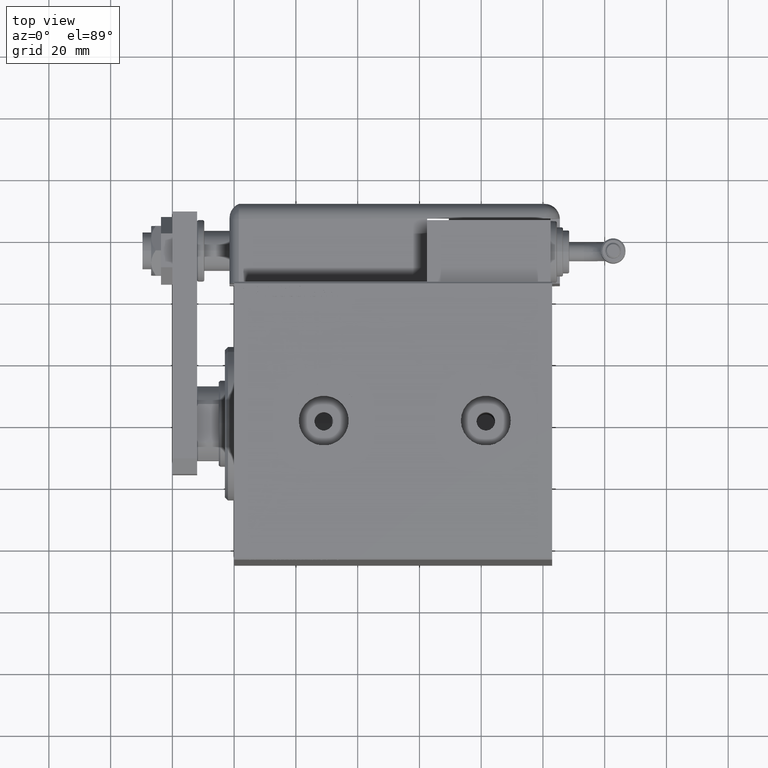
[diagram: clean part render]
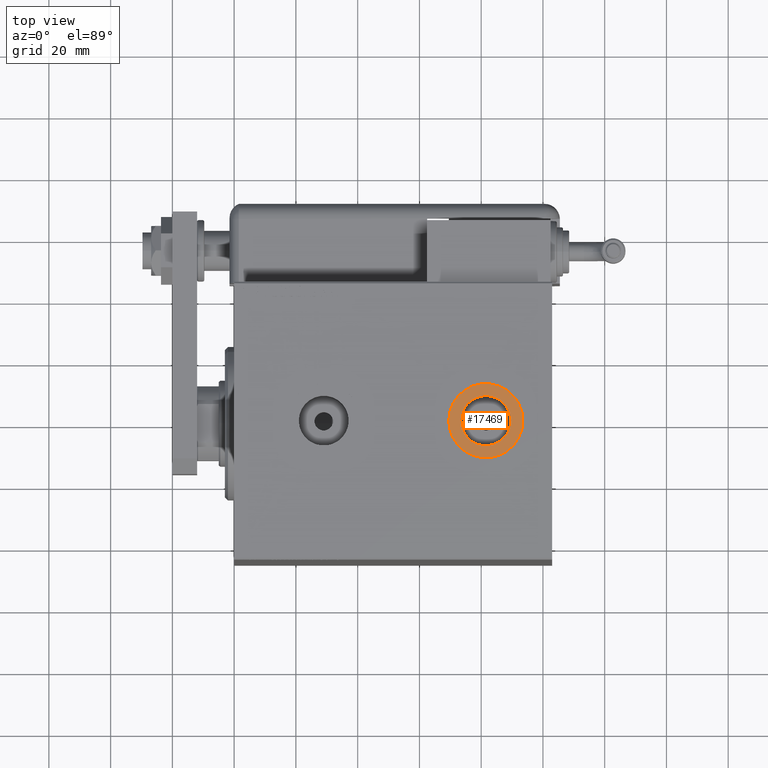
[diagram: same view with one face highlighted and labeled with its STEP entity id]
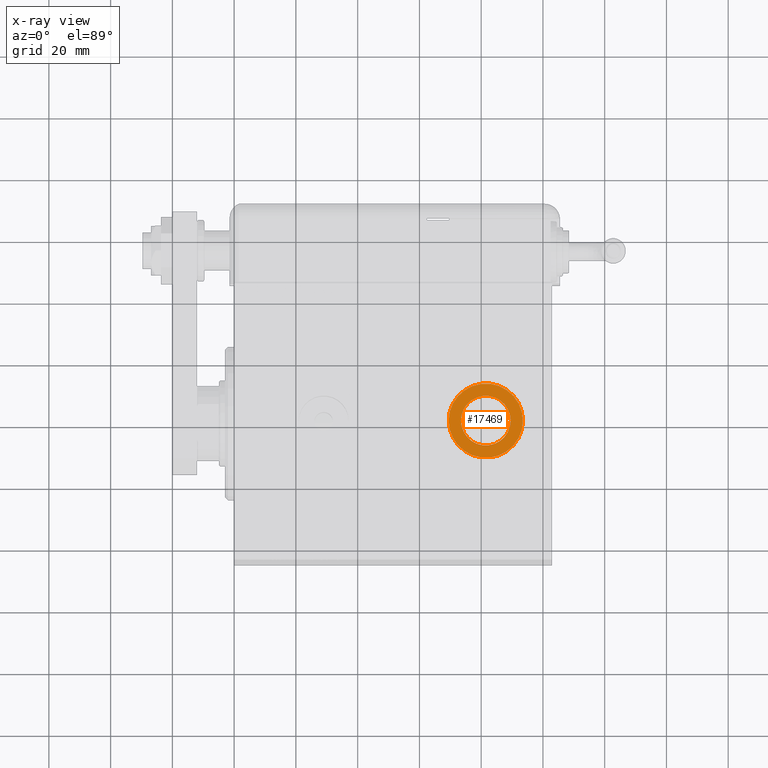
[diagram: x-ray of the same camera — body ghosted, the highlighted face saturated]
A machine part, top view. The second image highlights one B-rep face of the part: STEP entity #17469.
The next image is the same camera in x-ray: the body ghosted, the highlighted face saturated — about 0% of this face is hidden behind the body in this view.
In plain terms, the highlighted planar face has unit normal (0, 0, 1).
Its self-contained STEP definition (entity closure, byte-faithful):
#2341 = DIRECTION ( 'NONE',  ( 0.000000000000000000, 0.000000000000000000, 1.000000000000000000 ) ) ;
#3025 = CARTESIAN_POINT ( 'NONE',  ( 81.49999999999998579, -8.866364432770349300E-15, 57.39999999999999858 ) ) ;
#3370 = DIRECTION ( 'NONE',  ( 1.000000000000000000, 0.000000000000000000, 0.000000000000000000 ) ) ;
#5246 = ORIENTED_EDGE ( 'NONE', *, *, #60357, .F. ) ;
#7692 = CARTESIAN_POINT ( 'NONE',  ( 89.58499999999997954, -8.866364432770349300E-15, 57.39999999999999858 ) ) ;
#9224 = ORIENTED_EDGE ( 'NONE', *, *, #42184, .F. ) ;
#12326 = FACE_OUTER_BOUND ( 'NONE', #42137, .T. ) ;
#15769 = VERTEX_POINT ( 'NONE', #59922 ) ;
#15954 = AXIS2_PLACEMENT_3D ( 'NONE', #24788, #34092, #24484 ) ;
#17469 = ADVANCED_FACE ( 'NONE', ( #40552, #12326 ), #31231, .T. ) ;
#18318 = VERTEX_POINT ( 'NONE', #52190 ) ;
#21925 = DIRECTION ( 'NONE',  ( 1.000000000000000000, 0.000000000000000000, -0.000000000000000000 ) ) ;
#24484 = DIRECTION ( 'NONE',  ( 1.000000000000000000, 0.000000000000000000, 0.000000000000000000 ) ) ;
#24788 = CARTESIAN_POINT ( 'NONE',  ( 81.49999999999998579, -8.866364432770349300E-15, 57.39999999999999858 ) ) ;
#26968 = DIRECTION ( 'NONE',  ( 0.000000000000000000, 0.000000000000000000, 1.000000000000000000 ) ) ;
#28417 = AXIS2_PLACEMENT_3D ( 'NONE', #59105, #2341, #60321 ) ;
#29602 = VERTEX_POINT ( 'NONE', #7692 ) ;
#29916 = AXIS2_PLACEMENT_3D ( 'NONE', #3025, #31535, #21925 ) ;
#31199 = AXIS2_PLACEMENT_3D ( 'NONE', #51488, #26968, #37210 ) ;
#31231 = PLANE ( 'NONE',  #29916 ) ;
#31535 = DIRECTION ( 'NONE',  ( 0.000000000000000000, 0.000000000000000000, 1.000000000000000000 ) ) ;
#31574 = DIRECTION ( 'NONE',  ( 0.000000000000000000, 0.000000000000000000, 1.000000000000000000 ) ) ;
#33142 = EDGE_CURVE ( 'NONE', #18318, #37615, #43225, .T. ) ;
#34092 = DIRECTION ( 'NONE',  ( 0.000000000000000000, 0.000000000000000000, 1.000000000000000000 ) ) ;
#35603 = CARTESIAN_POINT ( 'NONE',  ( 69.49999999999997158, -7.396788273793525944E-15, 57.39999999999999858 ) ) ;
#37210 = DIRECTION ( 'NONE',  ( 1.000000000000000000, 0.000000000000000000, 0.000000000000000000 ) ) ;
#37615 = VERTEX_POINT ( 'NONE', #35603 ) ;
#37620 = EDGE_LOOP ( 'NONE', ( #5246, #9224 ) ) ;
#40317 = CIRCLE ( 'NONE', #28417, 12.00000000000001066 ) ;
#40552 = FACE_BOUND ( 'NONE', #37620, .T. ) ;
#42137 = EDGE_LOOP ( 'NONE', ( #43175, #47430 ) ) ;
#42184 = EDGE_CURVE ( 'NONE', #15769, #29602, #57964, .T. ) ;
#43175 = ORIENTED_EDGE ( 'NONE', *, *, #33142, .T. ) ;
#43225 = CIRCLE ( 'NONE', #48193, 12.00000000000001066 ) ;
#46538 = EDGE_CURVE ( 'NONE', #37615, #18318, #40317, .T. ) ;
#47430 = ORIENTED_EDGE ( 'NONE', *, *, #46538, .T. ) ;
#48193 = AXIS2_PLACEMENT_3D ( 'NONE', #51445, #31574, #3370 ) ;
#51445 = CARTESIAN_POINT ( 'NONE',  ( 81.49999999999998579, -8.866364432770349300E-15, 57.39999999999999858 ) ) ;
#51488 = CARTESIAN_POINT ( 'NONE',  ( 81.49999999999998579, -8.866364432770349300E-15, 57.39999999999999858 ) ) ;
#52190 = CARTESIAN_POINT ( 'NONE',  ( 93.50000000000000000, -8.866364432770349300E-15, 57.39999999999999858 ) ) ;
#57964 = CIRCLE ( 'NONE', #31199, 8.084999999999995524 ) ;
#58564 = CIRCLE ( 'NONE', #15954, 8.084999999999995524 ) ;
#59105 = CARTESIAN_POINT ( 'NONE',  ( 81.49999999999998579, -8.866364432770349300E-15, 57.39999999999999858 ) ) ;
#59922 = CARTESIAN_POINT ( 'NONE',  ( 73.41499999999999204, -7.876237495659714933E-15, 57.39999999999999858 ) ) ;
#60321 = DIRECTION ( 'NONE',  ( 1.000000000000000000, 0.000000000000000000, 0.000000000000000000 ) ) ;
#60357 = EDGE_CURVE ( 'NONE', #29602, #15769, #58564, .T. ) ;